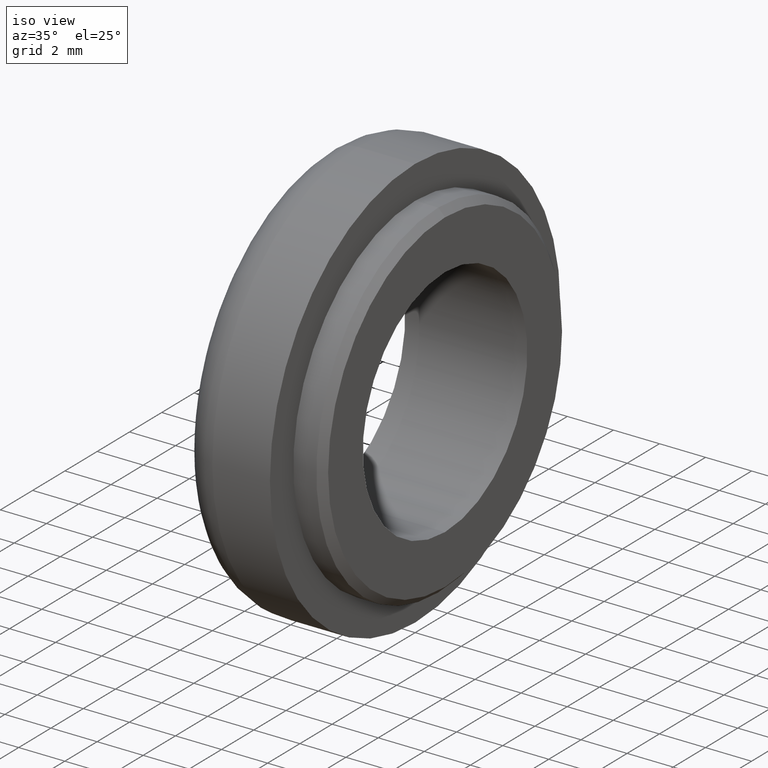
[diagram: clean part render]
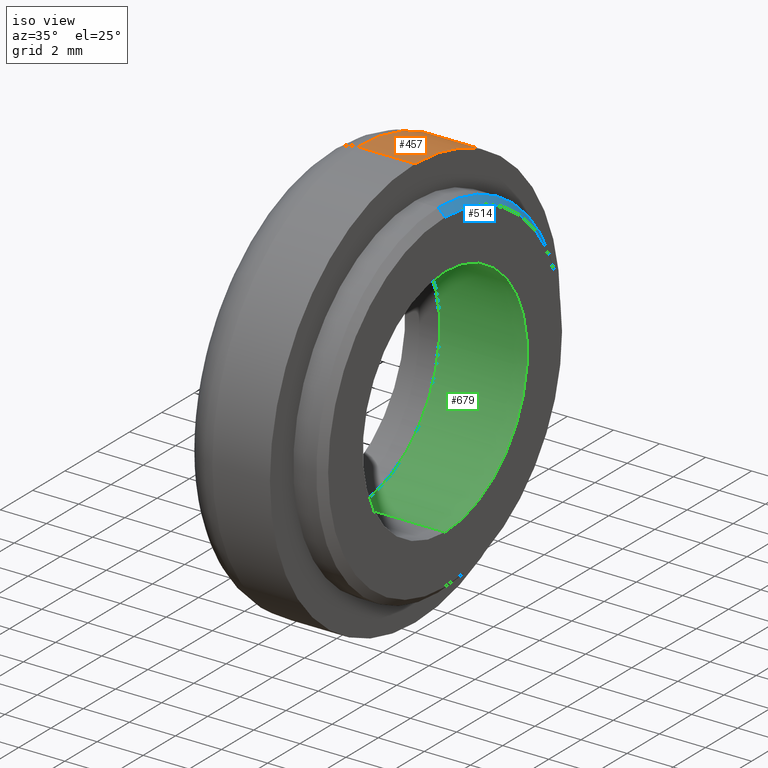
[diagram: same view with three faces highlighted in distinct colors, each labeled with its STEP entity id]
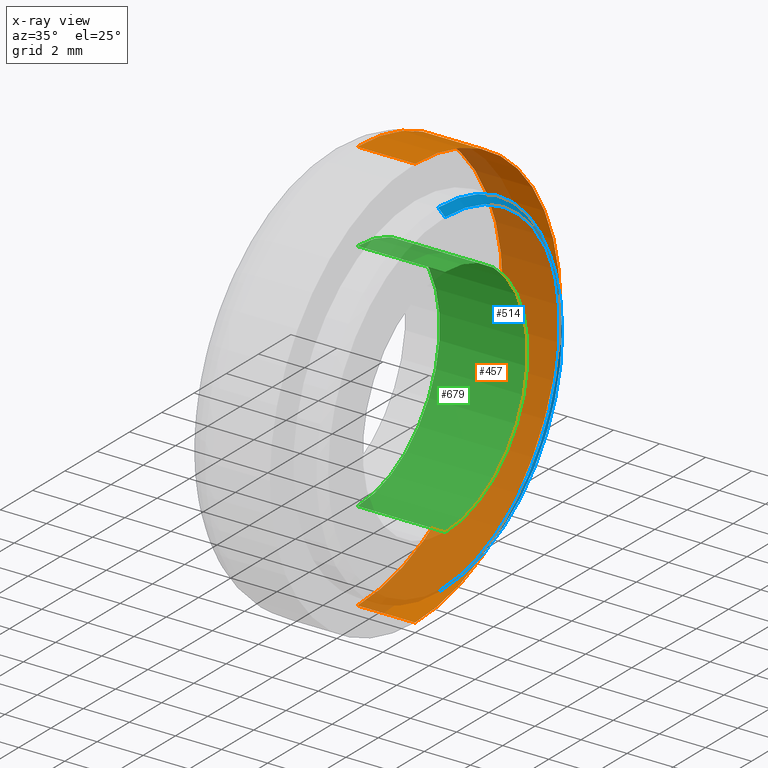
[diagram: x-ray of the same camera — body ghosted, the three highlighted faces saturated]
A machine part, iso view with three faces highlighted in distinct colors.
The next image is the same camera in x-ray (body ghosted, the three faces saturated) — at least one of them is partly hidden behind the body in this view.
Their STEP definitions:

[orange] entity #457 — the highlighted cylindrical surface (partial cylindrical patch) has radius 9 mm, axis along (-1, -0, -0).
#2 = EDGE_CURVE ( 'NONE', #653, #156, #154, .T. ) ;
#11 = CARTESIAN_POINT ( 'NONE',  ( 1.500000000000000000, 1.102182119232617700E-015, -9.000000000000000000 ) ) ;
#35 = CARTESIAN_POINT ( 'NONE',  ( 1.500000000000000000, 0.0000000000000000000, 9.000000000000000000 ) ) ;
#41 = EDGE_LOOP ( 'NONE', ( #368, #349, #646, #169 ) ) ;
#58 = CARTESIAN_POINT ( 'NONE',  ( 4.000000000000000000, 1.102182119232617700E-015, -9.000000000000000000 ) ) ;
#61 = VERTEX_POINT ( 'NONE', #35 ) ;
#85 = DIRECTION ( 'NONE',  ( -1.000000000000000000, -0.0000000000000000000, -0.0000000000000000000 ) ) ;
#102 = AXIS2_PLACEMENT_3D ( 'NONE', #283, #269, #544 ) ;
#145 = DIRECTION ( 'NONE',  ( 0.0000000000000000000, 0.0000000000000000000, -1.000000000000000000 ) ) ;
#151 = EDGE_CURVE ( 'NONE', #187, #61, #676, .T. ) ;
#154 = CIRCLE ( 'NONE', #224, 9.000000000000000000 ) ;
#156 = VERTEX_POINT ( 'NONE', #177 ) ;
#169 = ORIENTED_EDGE ( 'NONE', *, *, #492, .F. ) ;
#173 = FACE_OUTER_BOUND ( 'NONE', #41, .T. ) ;
#177 = CARTESIAN_POINT ( 'NONE',  ( 4.000000000000000000, 0.0000000000000000000, 9.000000000000000000 ) ) ;
#187 = VERTEX_POINT ( 'NONE', #11 ) ;
#218 = LINE ( 'NONE', #58, #482 ) ;
#224 = AXIS2_PLACEMENT_3D ( 'NONE', #609, #319, #145 ) ;
#269 = DIRECTION ( 'NONE',  ( 1.000000000000000000, 0.0000000000000000000, 0.0000000000000000000 ) ) ;
#273 = AXIS2_PLACEMENT_3D ( 'NONE', #573, #562, #561 ) ;
#280 = EDGE_CURVE ( 'NONE', #653, #187, #218, .T. ) ;
#283 = CARTESIAN_POINT ( 'NONE',  ( 1.500000000000000000, 0.0000000000000000000, 0.0000000000000000000 ) ) ;
#291 = CARTESIAN_POINT ( 'NONE',  ( 4.000000000000000000, 0.0000000000000000000, 9.000000000000000000 ) ) ;
#319 = DIRECTION ( 'NONE',  ( 1.000000000000000000, 0.0000000000000000000, 0.0000000000000000000 ) ) ;
#349 = ORIENTED_EDGE ( 'NONE', *, *, #280, .T. ) ;
#368 = ORIENTED_EDGE ( 'NONE', *, *, #2, .F. ) ;
#416 = DIRECTION ( 'NONE',  ( -1.000000000000000000, -0.0000000000000000000, -0.0000000000000000000 ) ) ;
#449 = VECTOR ( 'NONE', #85, 1000.000000000000000 ) ;
#457 = ADVANCED_FACE ( 'NONE', ( #173 ), #502, .T. ) ;
#482 = VECTOR ( 'NONE', #416, 1000.000000000000000 ) ;
#492 = EDGE_CURVE ( 'NONE', #156, #61, #592, .T. ) ;
#502 = CYLINDRICAL_SURFACE ( 'NONE', #273, 9.000000000000000000 ) ;
#544 = DIRECTION ( 'NONE',  ( 0.0000000000000000000, 0.0000000000000000000, -1.000000000000000000 ) ) ;
#561 = DIRECTION ( 'NONE',  ( 0.0000000000000000000, 0.0000000000000000000, 1.000000000000000000 ) ) ;
#562 = DIRECTION ( 'NONE',  ( -1.000000000000000000, -0.0000000000000000000, -0.0000000000000000000 ) ) ;
#573 = CARTESIAN_POINT ( 'NONE',  ( 4.000000000000000000, 0.0000000000000000000, 0.0000000000000000000 ) ) ;
#574 = CARTESIAN_POINT ( 'NONE',  ( 4.000000000000000000, 1.102182119232617700E-015, -9.000000000000000000 ) ) ;
#592 = LINE ( 'NONE', #291, #449 ) ;
#609 = CARTESIAN_POINT ( 'NONE',  ( 4.000000000000000000, 0.0000000000000000000, 0.0000000000000000000 ) ) ;
#646 = ORIENTED_EDGE ( 'NONE', *, *, #151, .T. ) ;
#653 = VERTEX_POINT ( 'NONE', #574 ) ;
#676 = CIRCLE ( 'NONE', #102, 9.000000000000000000 ) ;

[blue] entity #514 — the highlighted conical surface has half-angle 45 deg.
#75 = DIRECTION ( 'NONE',  ( -1.000000000000000000, -0.0000000000000000000, -0.0000000000000000000 ) ) ;
#81 = CARTESIAN_POINT ( 'NONE',  ( 3.799999999999998000, 0.0000000000000000000, 0.0000000000000000000 ) ) ;
#87 = EDGE_CURVE ( 'NONE', #657, #640, #703, .T. ) ;
#101 = DIRECTION ( 'NONE',  ( 0.0000000000000000000, 0.0000000000000000000, 1.000000000000000000 ) ) ;
#113 = CARTESIAN_POINT ( 'NONE',  ( 3.500000000000003100, 9.246083333562514700E-016, -7.549999999999999800 ) ) ;
#153 = EDGE_LOOP ( 'NONE', ( #588, #546, #539, #731 ) ) ;
#180 = CARTESIAN_POINT ( 'NONE',  ( 3.799999999999998000, 0.0000000000000000000, 7.250000000000000000 ) ) ;
#183 = CARTESIAN_POINT ( 'NONE',  ( 3.500000000000003100, 0.0000000000000000000, 7.549999999999999800 ) ) ;
#195 = DIRECTION ( 'NONE',  ( -1.000000000000000000, -0.0000000000000000000, -0.0000000000000000000 ) ) ;
#200 = DIRECTION ( 'NONE',  ( -0.7071067811865424700, 0.0000000000000000000, 0.7071067811865526800 ) ) ;
#210 = DIRECTION ( 'NONE',  ( 0.0000000000000000000, 0.0000000000000000000, 1.000000000000000000 ) ) ;
#229 = FACE_OUTER_BOUND ( 'NONE', #153, .T. ) ;
#242 = EDGE_CURVE ( 'NONE', #499, #640, #330, .T. ) ;
#261 = CARTESIAN_POINT ( 'NONE',  ( 3.799999999999998000, 9.062386313690412400E-016, -7.250000000000000000 ) ) ;
#304 = DIRECTION ( 'NONE',  ( -0.7071067811865424700, 8.659560562354995700E-017, -0.7071067811865526800 ) ) ;
#308 = CARTESIAN_POINT ( 'NONE',  ( 3.799999999999998000, 8.878689293818310100E-016, -7.250000000000000000 ) ) ;
#309 = AXIS2_PLACEMENT_3D ( 'NONE', #81, #311, #437 ) ;
#311 = DIRECTION ( 'NONE',  ( -1.000000000000000000, -0.0000000000000000000, -0.0000000000000000000 ) ) ;
#330 = LINE ( 'NONE', #308, #435 ) ;
#352 = AXIS2_PLACEMENT_3D ( 'NONE', #425, #75, #101 ) ;
#390 = EDGE_CURVE ( 'NONE', #581, #657, #553, .T. ) ;
#425 = CARTESIAN_POINT ( 'NONE',  ( 3.799999999999998000, 0.0000000000000000000, 0.0000000000000000000 ) ) ;
#435 = VECTOR ( 'NONE', #304, 1000.000000000000000 ) ;
#437 = DIRECTION ( 'NONE',  ( 0.0000000000000000000, 0.0000000000000000000, 1.000000000000000000 ) ) ;
#490 = EDGE_CURVE ( 'NONE', #581, #499, #533, .T. ) ;
#499 = VERTEX_POINT ( 'NONE', #261 ) ;
#514 = ADVANCED_FACE ( 'NONE', ( #229 ), #587, .T. ) ;
#530 = CARTESIAN_POINT ( 'NONE',  ( 3.500000000000003100, 0.0000000000000000000, 0.0000000000000000000 ) ) ;
#533 = CIRCLE ( 'NONE', #309, 7.250000000000000000 ) ;
#539 = ORIENTED_EDGE ( 'NONE', *, *, #87, .F. ) ;
#541 = AXIS2_PLACEMENT_3D ( 'NONE', #530, #195, #210 ) ;
#546 = ORIENTED_EDGE ( 'NONE', *, *, #242, .T. ) ;
#553 = LINE ( 'NONE', #720, #662 ) ;
#581 = VERTEX_POINT ( 'NONE', #180 ) ;
#587 = CONICAL_SURFACE ( 'NONE', #352, 7.250000000000000000, 0.7853981633974555000 ) ;
#588 = ORIENTED_EDGE ( 'NONE', *, *, #490, .T. ) ;
#640 = VERTEX_POINT ( 'NONE', #113 ) ;
#657 = VERTEX_POINT ( 'NONE', #183 ) ;
#662 = VECTOR ( 'NONE', #200, 1000.000000000000000 ) ;
#703 = CIRCLE ( 'NONE', #541, 7.549999999999999800 ) ;
#720 = CARTESIAN_POINT ( 'NONE',  ( 3.799999999999998000, 0.0000000000000000000, 7.250000000000000000 ) ) ;
#731 = ORIENTED_EDGE ( 'NONE', *, *, #390, .F. ) ;

[green] entity #679 — the highlighted cylindrical surface (partial cylindrical patch) has radius 5.1 mm, axis along (-1, -0, -0).
#7 = CIRCLE ( 'NONE', #299, 5.099999999999999600 ) ;
#16 = VECTOR ( 'NONE', #252, 1000.000000000000000 ) ;
#17 = CARTESIAN_POINT ( 'NONE',  ( 3.799999999999998000, 0.0000000000000000000, 5.100000000000000500 ) ) ;
#23 = DIRECTION ( 'NONE',  ( 0.0000000000000000000, 0.0000000000000000000, 1.000000000000000000 ) ) ;
#36 = EDGE_CURVE ( 'NONE', #310, #510, #7, .T. ) ;
#52 = AXIS2_PLACEMENT_3D ( 'NONE', #88, #295, #433 ) ;
#86 = CARTESIAN_POINT ( 'NONE',  ( 3.799999999999998000, 6.245698675651501800E-016, -5.100000000000000500 ) ) ;
#88 = CARTESIAN_POINT ( 'NONE',  ( -88.98999999999999500, 0.0000000000000000000, 0.0000000000000000000 ) ) ;
#125 = CARTESIAN_POINT ( 'NONE',  ( -88.98999999999999500, 6.245698675651501800E-016, -5.100000000000000500 ) ) ;
#186 = ORIENTED_EDGE ( 'NONE', *, *, #520, .F. ) ;
#252 = DIRECTION ( 'NONE',  ( -1.000000000000000000, -0.0000000000000000000, -0.0000000000000000000 ) ) ;
#265 = CIRCLE ( 'NONE', #726, 5.100000000000000500 ) ;
#276 = CYLINDRICAL_SURFACE ( 'NONE', #52, 5.100000000000000500 ) ;
#287 = DIRECTION ( 'NONE',  ( 0.0000000000000000000, 0.0000000000000000000, 1.000000000000000000 ) ) ;
#292 = FACE_OUTER_BOUND ( 'NONE', #371, .T. ) ;
#295 = DIRECTION ( 'NONE',  ( -1.000000000000000000, -0.0000000000000000000, -0.0000000000000000000 ) ) ;
#299 = AXIS2_PLACEMENT_3D ( 'NONE', #315, #708, #23 ) ;
#310 = VERTEX_POINT ( 'NONE', #434 ) ;
#315 = CARTESIAN_POINT ( 'NONE',  ( 0.0000000000000000000, 0.0000000000000000000, 0.0000000000000000000 ) ) ;
#323 = EDGE_CURVE ( 'NONE', #353, #510, #346, .T. ) ;
#346 = LINE ( 'NONE', #125, #16 ) ;
#353 = VERTEX_POINT ( 'NONE', #86 ) ;
#371 = EDGE_LOOP ( 'NONE', ( #515, #186, #420, #728 ) ) ;
#386 = CARTESIAN_POINT ( 'NONE',  ( 0.0000000000000000000, 6.245698675651500800E-016, -5.099999999999999600 ) ) ;
#404 = CARTESIAN_POINT ( 'NONE',  ( 3.799999999999998000, 0.0000000000000000000, 0.0000000000000000000 ) ) ;
#413 = LINE ( 'NONE', #471, #470 ) ;
#420 = ORIENTED_EDGE ( 'NONE', *, *, #473, .T. ) ;
#433 = DIRECTION ( 'NONE',  ( 0.0000000000000000000, 0.0000000000000000000, 1.000000000000000000 ) ) ;
#434 = CARTESIAN_POINT ( 'NONE',  ( 0.0000000000000000000, 0.0000000000000000000, 5.099999999999999600 ) ) ;
#470 = VECTOR ( 'NONE', #705, 1000.000000000000000 ) ;
#471 = CARTESIAN_POINT ( 'NONE',  ( -88.98999999999999500, 0.0000000000000000000, 5.100000000000000500 ) ) ;
#473 = EDGE_CURVE ( 'NONE', #666, #310, #413, .T. ) ;
#510 = VERTEX_POINT ( 'NONE', #386 ) ;
#515 = ORIENTED_EDGE ( 'NONE', *, *, #323, .F. ) ;
#520 = EDGE_CURVE ( 'NONE', #666, #353, #265, .T. ) ;
#639 = DIRECTION ( 'NONE',  ( -1.000000000000000000, -0.0000000000000000000, -0.0000000000000000000 ) ) ;
#666 = VERTEX_POINT ( 'NONE', #17 ) ;
#679 = ADVANCED_FACE ( 'NONE', ( #292 ), #276, .F. ) ;
#705 = DIRECTION ( 'NONE',  ( -1.000000000000000000, -0.0000000000000000000, -0.0000000000000000000 ) ) ;
#708 = DIRECTION ( 'NONE',  ( -1.000000000000000000, -0.0000000000000000000, -0.0000000000000000000 ) ) ;
#726 = AXIS2_PLACEMENT_3D ( 'NONE', #404, #639, #287 ) ;
#728 = ORIENTED_EDGE ( 'NONE', *, *, #36, .T. ) ;